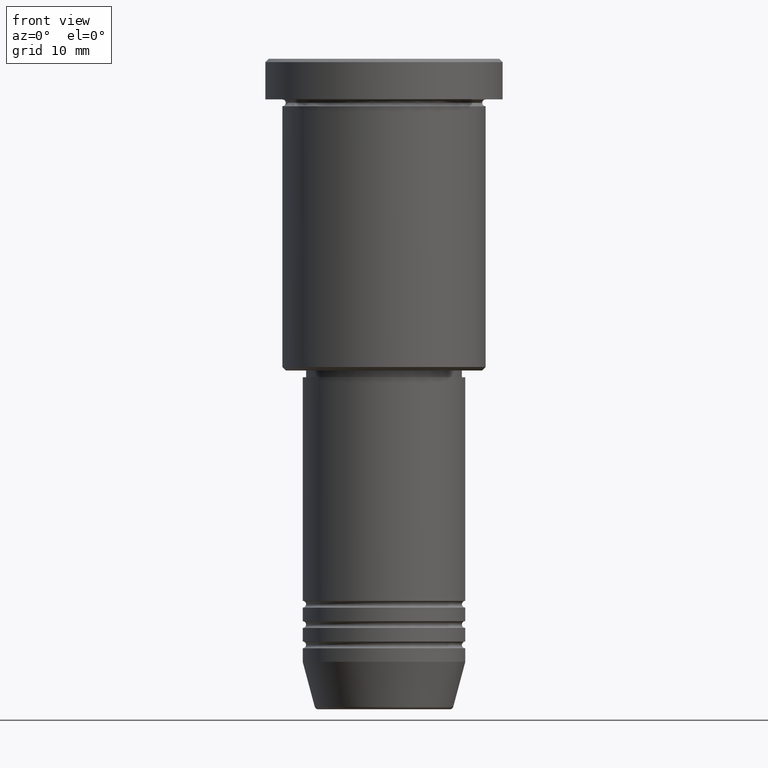
[diagram: clean part render]
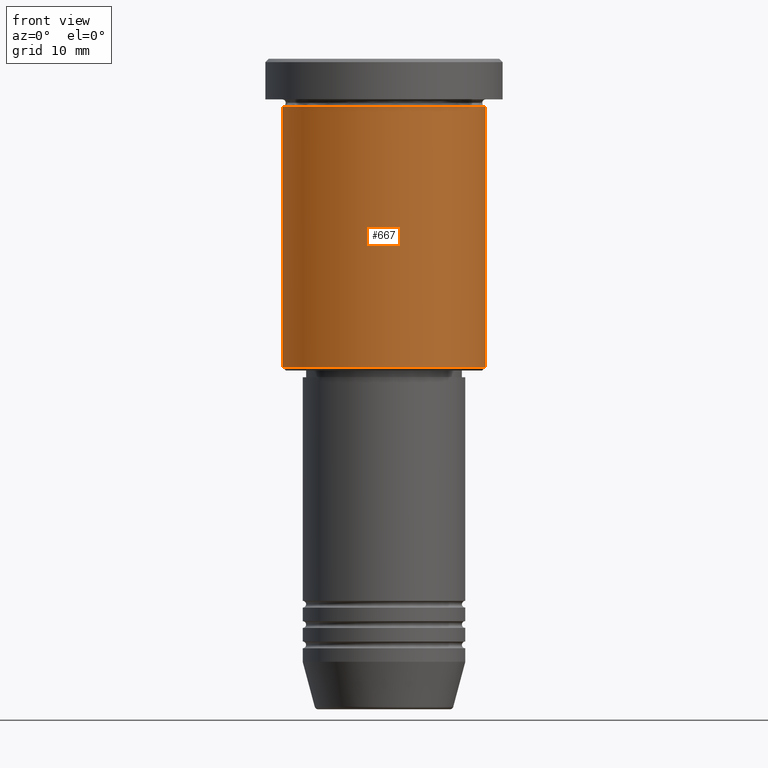
[diagram: same view with one face highlighted and labeled with its STEP entity id]
A machine part, front view. The second image highlights one B-rep face of the part: STEP entity #667.
In plain terms, the highlighted cylindrical surface (partial cylindrical patch) has radius 15 mm, axis along (-0, -0, 1).
Its self-contained STEP definition (entity closure, byte-faithful):
#22 = CARTESIAN_POINT ( 'NONE',  ( 0.000000000000000000, 0.000000000000000000, 0.000000000000000000 ) ) ;
#23 = VECTOR ( 'NONE', #848, 1000.000000000000000 ) ;
#30 = CARTESIAN_POINT ( 'NONE',  ( 15.00000000000000000, 0.000000000000000000, -6.999999999999995559 ) ) ;
#108 = DIRECTION ( 'NONE',  ( 1.000000000000000000, 0.000000000000000000, 0.000000000000000000 ) ) ;
#125 = LINE ( 'NONE', #316, #23 ) ;
#188 = CIRCLE ( 'NONE', #881, 15.00000000000000000 ) ;
#197 = LINE ( 'NONE', #555, #901 ) ;
#242 = EDGE_CURVE ( 'NONE', #1176, #619, #125, .T. ) ;
#300 = ORIENTED_EDGE ( 'NONE', *, *, #651, .F. ) ;
#316 = CARTESIAN_POINT ( 'NONE',  ( -15.00000000000000000, 1.836970198721029589E-15, 0.000000000000000000 ) ) ;
#339 = VERTEX_POINT ( 'NONE', #30 ) ;
#344 = DIRECTION ( 'NONE',  ( -0.000000000000000000, -0.000000000000000000, 1.000000000000000000 ) ) ;
#354 = ORIENTED_EDGE ( 'NONE', *, *, #1067, .T. ) ;
#390 = FACE_OUTER_BOUND ( 'NONE', #988, .T. ) ;
#421 = VERTEX_POINT ( 'NONE', #1074 ) ;
#464 = CARTESIAN_POINT ( 'NONE',  ( -15.00000000000000000, 1.836970198721029589E-15, -6.999999999999995559 ) ) ;
#548 = AXIS2_PLACEMENT_3D ( 'NONE', #22, #850, #1124 ) ;
#555 = CARTESIAN_POINT ( 'NONE',  ( 15.00000000000000000, 0.000000000000000000, 0.000000000000000000 ) ) ;
#559 = DIRECTION ( 'NONE',  ( -0.000000000000000000, -0.000000000000000000, 1.000000000000000000 ) ) ;
#599 = CIRCLE ( 'NONE', #1072, 15.00000000000000000 ) ;
#619 = VERTEX_POINT ( 'NONE', #464 ) ;
#651 = EDGE_CURVE ( 'NONE', #619, #339, #599, .T. ) ;
#665 = CARTESIAN_POINT ( 'NONE',  ( -15.00000000000000000, 1.836970198721029589E-15, -45.49999999999999289 ) ) ;
#667 = ADVANCED_FACE ( 'NONE', ( #390 ), #1116, .T. ) ;
#693 = CARTESIAN_POINT ( 'NONE',  ( 0.000000000000000000, 0.000000000000000000, -45.49999999999999289 ) ) ;
#706 = DIRECTION ( 'NONE',  ( -1.000000000000000000, 0.000000000000000000, 0.000000000000000000 ) ) ;
#810 = ORIENTED_EDGE ( 'NONE', *, *, #870, .T. ) ;
#828 = DIRECTION ( 'NONE',  ( -0.000000000000000000, -0.000000000000000000, 1.000000000000000000 ) ) ;
#848 = DIRECTION ( 'NONE',  ( -0.000000000000000000, -0.000000000000000000, 1.000000000000000000 ) ) ;
#850 = DIRECTION ( 'NONE',  ( -0.000000000000000000, -0.000000000000000000, 1.000000000000000000 ) ) ;
#870 = EDGE_CURVE ( 'NONE', #1176, #421, #188, .T. ) ;
#881 = AXIS2_PLACEMENT_3D ( 'NONE', #693, #344, #706 ) ;
#901 = VECTOR ( 'NONE', #559, 1000.000000000000000 ) ;
#988 = EDGE_LOOP ( 'NONE', ( #1180, #810, #354, #300 ) ) ;
#1009 = CARTESIAN_POINT ( 'NONE',  ( 0.000000000000000000, 0.000000000000000000, -6.999999999999995559 ) ) ;
#1067 = EDGE_CURVE ( 'NONE', #421, #339, #197, .T. ) ;
#1072 = AXIS2_PLACEMENT_3D ( 'NONE', #1009, #828, #108 ) ;
#1074 = CARTESIAN_POINT ( 'NONE',  ( 15.00000000000000000, 0.000000000000000000, -45.49999999999999289 ) ) ;
#1116 = CYLINDRICAL_SURFACE ( 'NONE', #548, 15.00000000000000000 ) ;
#1124 = DIRECTION ( 'NONE',  ( 1.000000000000000000, 0.000000000000000000, 0.000000000000000000 ) ) ;
#1176 = VERTEX_POINT ( 'NONE', #665 ) ;
#1180 = ORIENTED_EDGE ( 'NONE', *, *, #242, .F. ) ;